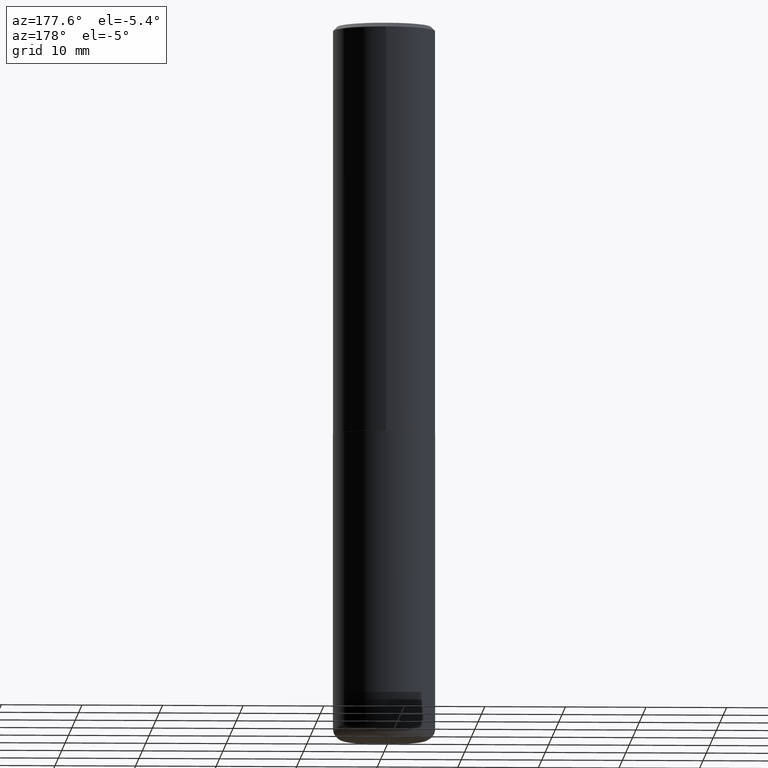
[diagram: clean part render]
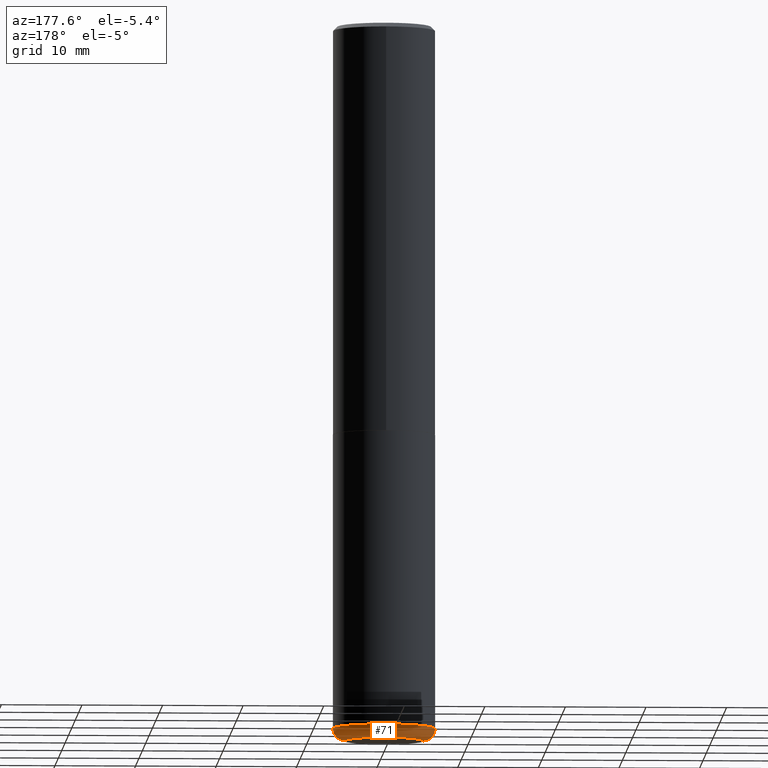
[diagram: same view with one face highlighted and labeled with its STEP entity id]
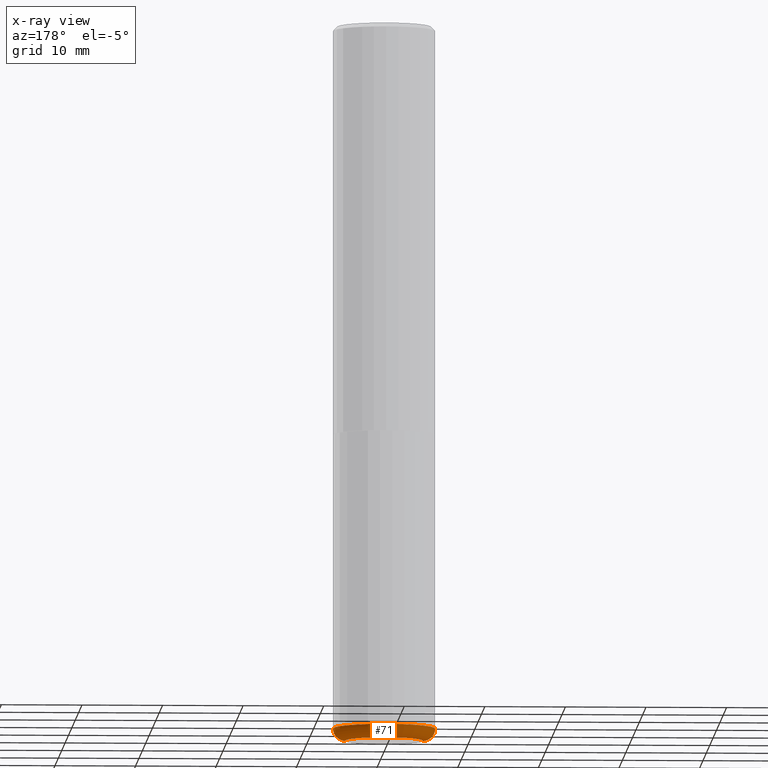
[diagram: x-ray of the same camera — body ghosted, the highlighted face saturated]
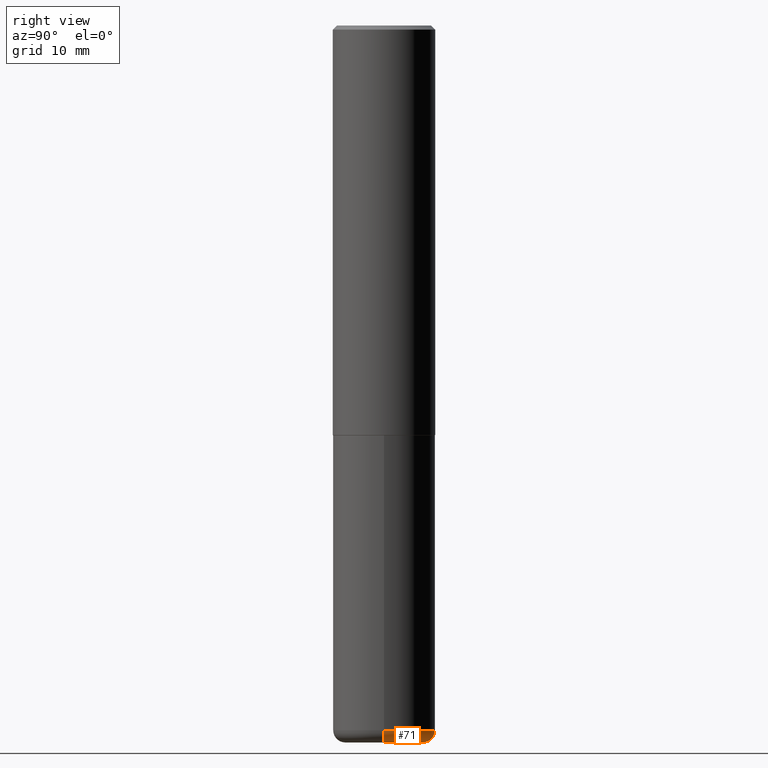
[diagram: same view with one face highlighted and labeled with its STEP entity id]
A machine part, auxiliary view. The second image highlights one B-rep face of the part: STEP entity #71.
The next image is the same camera in x-ray: the body ghosted, the highlighted face saturated — about 0% of this face is hidden behind the body in this view.
A second angle (right view) of the same face is appended — the face is thin or edge-on in the first view.
In plain terms, the highlighted toroidal blend (fillet) surface has major radius 4.826 mm and minor (blend) radius 1.524 mm.
Its self-contained STEP definition (entity closure, byte-faithful):
#4 = CARTESIAN_POINT ( 'NONE',  ( -0.2499999999999999722, -1.023433896622016898E-14, -3.439999999999999947 ) ) ;
#30 = EDGE_CURVE ( 'NONE', #194, #263, #225, .T. ) ;
#34 = EDGE_LOOP ( 'NONE', ( #324, #415, #176, #407 ) ) ;
#45 = VERTEX_POINT ( 'NONE', #139 ) ;
#47 = CARTESIAN_POINT ( 'NONE',  ( 8.412412693276869938E-29, -1.201069580562042103E-14, -3.439999999999999947 ) ) ;
#52 = CARTESIAN_POINT ( 'NONE',  ( 0.2499999999999999722, -1.375643647504198770E-14, -3.439999999999999947 ) ) ;
#57 = CARTESIAN_POINT ( 'NONE',  ( 0.1899999999999999745, -1.333745871438081265E-14, -3.439999999999999947 ) ) ;
#61 = CARTESIAN_POINT ( 'NONE',  ( -0.1899999999999999745, -1.066066460767623105E-14, -3.439999999999999947 ) ) ;
#71 = ADVANCED_FACE ( 'NONE', ( #99 ), #258, .T. ) ;
#78 = DIRECTION ( 'NONE',  ( -1.000000000000000000, 7.105427357600997914E-15, 0.000000000000000000 ) ) ;
#81 = DIRECTION ( 'NONE',  ( 7.105427357601001859E-15, 1.000000000000000000, -3.491481338843145583E-15 ) ) ;
#82 = AXIS2_PLACEMENT_3D ( 'NONE', #57, #388, #86 ) ;
#86 = DIRECTION ( 'NONE',  ( 1.000000000000000000, -6.982962677686274599E-15, 0.000000000000000000 ) ) ;
#87 = CIRCLE ( 'NONE', #144, 0.2500000000000000000 ) ;
#99 = FACE_OUTER_BOUND ( 'NONE', #34, .T. ) ;
#105 = DIRECTION ( 'NONE',  ( -2.445468806185136597E-29, 3.491481338843145583E-15, 1.000000000000000000 ) ) ;
#109 = CARTESIAN_POINT ( 'NONE',  ( 8.412412693276869938E-29, -1.201069580562042103E-14, -3.439999999999999947 ) ) ;
#134 = DIRECTION ( 'NONE',  ( 1.000000000000000000, -6.982962677686265133E-15, 4.883557194083112340E-29 ) ) ;
#139 = CARTESIAN_POINT ( 'NONE',  ( 0.1899999999999999745, -1.354694759471140096E-14, -3.500000000000000000 ) ) ;
#144 = AXIS2_PLACEMENT_3D ( 'NONE', #47, #406, #375 ) ;
#161 = CIRCLE ( 'NONE', #82, 0.05999999999999994227 ) ;
#176 = ORIENTED_EDGE ( 'NONE', *, *, #396, .F. ) ;
#180 = CARTESIAN_POINT ( 'NONE',  ( -0.1899999999999999745, -1.055224622711349575E-14, -3.500000000000000000 ) ) ;
#194 = VERTEX_POINT ( 'NONE', #180 ) ;
#225 = CIRCLE ( 'NONE', #246, 0.05999999999999994227 ) ;
#226 = VERTEX_POINT ( 'NONE', #52 ) ;
#227 = CIRCLE ( 'NONE', #349, 0.1899999999999999745 ) ;
#237 = AXIS2_PLACEMENT_3D ( 'NONE', #109, #105, #134 ) ;
#246 = AXIS2_PLACEMENT_3D ( 'NONE', #61, #81, #78 ) ;
#258 = TOROIDAL_SURFACE ( 'NONE', #237, 0.1899999999999999745, 0.05999999999999995615 ) ;
#263 = VERTEX_POINT ( 'NONE', #4 ) ;
#281 = DIRECTION ( 'NONE',  ( 1.000000000000000000, -6.982962677686273021E-15, 0.000000000000000000 ) ) ;
#299 = CARTESIAN_POINT ( 'NONE',  ( 8.559140821647976968E-29, -1.222018468595100934E-14, -3.500000000000000000 ) ) ;
#317 = EDGE_CURVE ( 'NONE', #45, #194, #227, .T. ) ;
#324 = ORIENTED_EDGE ( 'NONE', *, *, #317, .T. ) ;
#327 = EDGE_CURVE ( 'NONE', #45, #226, #161, .T. ) ;
#342 = DIRECTION ( 'NONE',  ( -2.445468806185136597E-29, 3.491481338843145583E-15, 1.000000000000000000 ) ) ;
#349 = AXIS2_PLACEMENT_3D ( 'NONE', #299, #342, #281 ) ;
#375 = DIRECTION ( 'NONE',  ( 1.000000000000000000, -6.982962677686270655E-15, 0.000000000000000000 ) ) ;
#388 = DIRECTION ( 'NONE',  ( -6.982962677686266711E-15, -1.000000000000000000, 3.491481338843145583E-15 ) ) ;
#396 = EDGE_CURVE ( 'NONE', #226, #263, #87, .T. ) ;
#406 = DIRECTION ( 'NONE',  ( -2.445468806185136597E-29, 3.491481338843145583E-15, 1.000000000000000000 ) ) ;
#407 = ORIENTED_EDGE ( 'NONE', *, *, #327, .F. ) ;
#415 = ORIENTED_EDGE ( 'NONE', *, *, #30, .T. ) ;